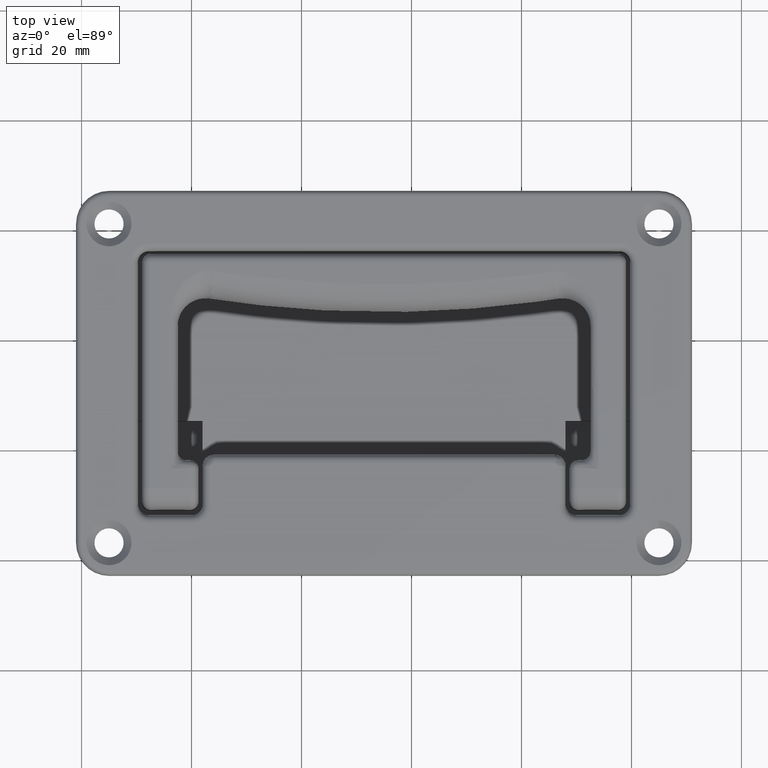
[diagram: clean part render]
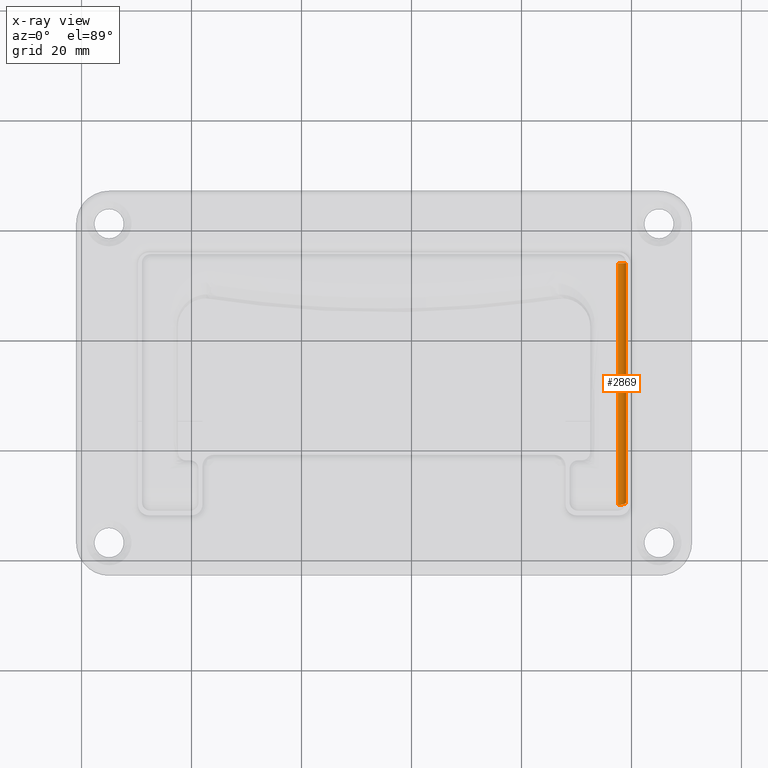
[diagram: x-ray — body ghosted, one internal face saturated and labeled with its STEP entity id]
A machine part, top view, then the same camera in x-ray: the body is ghosted and one INTERNAL B-rep face — a face not visible from any outside direction — is saturated and labeled: STEP entity #2869.
In plain terms, the highlighted cylindrical surface (edge-blend (fillet) strip) has radius 1.5 mm, axis along (0, -1, 0).
Its self-contained STEP definition (entity closure, byte-faithful):
#86=B_SPLINE_CURVE_WITH_KNOTS('',3,(#4379,#4380,#4381,#4382,#4383,#4384,
#4385,#4386,#4387,#4388,#4389,#4390,#4391,#4392,#4393,#4394,#4395,#4396,
#4397,#4398,#4399,#4400,#4401,#4402,#4403,#4404,#4405,#4406,#4407,#4408,
#4409,#4410,#4411,#4412,#4413,#4414,#4415,#4416,#4417,#4418,#4419,#4420,
#4421,#4422,#4423,#4424,#4425,#4426,#4427,#4428,#4429,#4430,#4431,#4432,
#4433,#4434,#4435,#4436,#4437,#4438,#4439,#4440,#4441,#4442,#4443,#4444,
#4445,#4446,#4447,#4448,#4449,#4450,#4451,#4452,#4453,#4454,#4455,#4456,
#4457,#4458,#4459,#4460,#4461,#4462,#4463,#4464,#4465,#4466,#4467,#4468,
#4469,#4470,#4471,#4472),.UNSPECIFIED.,.F.,.F.,(4,3,3,3,3,3,3,3,3,3,3,3,
3,3,3,3,3,3,3,3,3,3,3,3,3,3,3,3,3,3,3,4),(4.2138706751852E-8,0.0340569273156823,
0.0677049350337049,0.0739888339890119,0.101220326883454,0.134854624841893,
0.169207967446688,0.204311187055613,0.241286852609386,0.250000031604034,
0.262616246339423,0.28412862186281,0.316713435639734,0.348427897336422,
0.379678612206954,0.410825957174128,0.442158478836329,0.47432979574268,
0.500000021069361,0.548172933326489,0.595637005866986,0.632855567637265,
0.642605197995984,0.689162632761354,0.735583821136498,0.781970359299388,
0.813350958050753,0.828421387953447,0.875208717919212,0.922274553770172,
0.970034856260735,1.),.UNSPECIFIED.);
#141=LINE('',#4376,#331);
#142=LINE('',#4474,#332);
#331=VECTOR('',#3455,43.500003999996);
#332=VECTOR('',#3458,44.0000039137705);
#605=FACE_OUTER_BOUND('',#804,.T.);
#804=EDGE_LOOP('',(#1928,#1929,#1930,#1931));
#1038=CIRCLE('',#3074,1.5);
#1230=VERTEX_POINT('',#4368);
#1233=VERTEX_POINT('',#4374);
#1234=VERTEX_POINT('',#4378);
#1235=VERTEX_POINT('',#4473);
#1493=EDGE_CURVE('',#1230,#1233,#141,.T.);
#1494=EDGE_CURVE('',#1234,#1233,#86,.T.);
#1495=EDGE_CURVE('',#1235,#1234,#142,.T.);
#1496=EDGE_CURVE('',#1230,#1235,#1038,.T.);
#1928=ORIENTED_EDGE('',*,*,#1494,.F.);
#1929=ORIENTED_EDGE('',*,*,#1495,.F.);
#1930=ORIENTED_EDGE('',*,*,#1496,.F.);
#1931=ORIENTED_EDGE('',*,*,#1493,.T.);
#2778=CYLINDRICAL_SURFACE('',#3073,1.5);
#2869=ADVANCED_FACE('',(#605),#2778,.T.);
#3073=AXIS2_PLACEMENT_3D('',#4377,#3456,#3457);
#3074=AXIS2_PLACEMENT_3D('',#4475,#3459,#3460);
#3455=DIRECTION('',(0.,-1.,0.));
#3456=DIRECTION('center_axis',(0.,-1.,0.));
#3457=DIRECTION('ref_axis',(0.,0.,-1.));
#3458=DIRECTION('',(0.,-1.,0.));
#3459=DIRECTION('center_axis',(0.,1.,0.));
#3460=DIRECTION('ref_axis',(1.,0.,0.));
#4368=CARTESIAN_POINT('',(98.9999999999998,-46.,-63.500000000002));
#4374=CARTESIAN_POINT('',(98.9999999999998,-89.500003999996,-63.500000000002));
#4376=CARTESIAN_POINT('',(98.9999999999998,-46.,-63.500000000002));
#4377=CARTESIAN_POINT('Origin',(97.4999999999998,16.1174052144,-63.500000000002));
#4378=CARTESIAN_POINT('',(97.5000015639394,-90.0000039410778,-64.999792596508));
#4379=CARTESIAN_POINT('Ctrl Pts',(97.5000012336167,-90.0000038755357,-64.9995689572123));
#4380=CARTESIAN_POINT('Ctrl Pts',(97.5256237829227,-89.9999975535866,-64.9995991098802));
#4381=CARTESIAN_POINT('Ctrl Pts',(97.5518965027596,-89.9997019358284,-64.9990032738568));
#4382=CARTESIAN_POINT('Ctrl Pts',(97.5785406870229,-89.9991450692322,-64.9976853322158));
#4383=CARTESIAN_POINT('Ctrl Pts',(97.6048649886456,-89.998594888221,-64.9963832134143));
#4384=CARTESIAN_POINT('Ctrl Pts',(97.631551932817,-89.9977896910596,-64.9943760528449));
#4385=CARTESIAN_POINT('Ctrl Pts',(97.6583203762018,-89.9967565454501,-64.9915930226025));
#4386=CARTESIAN_POINT('Ctrl Pts',(97.66331948922,-89.996563601408,-64.9910732806618));
#4387=CARTESIAN_POINT('Ctrl Pts',(97.6683217803837,-89.9963634595133,-64.9905265062977));
#4388=CARTESIAN_POINT('Ctrl Pts',(97.6733248320259,-89.9961553797952,-64.9899523918835));
#4389=CARTESIAN_POINT('Ctrl Pts',(97.6950057289042,-89.9952536591588,-64.987464447265));
#4390=CARTESIAN_POINT('Ctrl Pts',(97.7167008683884,-89.9941995334586,-64.9844613098506));
#4391=CARTESIAN_POINT('Ctrl Pts',(97.7382686002475,-89.9930176952487,-64.9809777520229));
#4392=CARTESIAN_POINT('Ctrl Pts',(97.7649074452954,-89.9915579773167,-64.9766751226231));
#4393=CARTESIAN_POINT('Ctrl Pts',(97.7913490046622,-89.9898974971707,-64.9716391695447));
#4394=CARTESIAN_POINT('Ctrl Pts',(97.8173331545619,-89.9880632666292,-64.965977143522));
#4395=CARTESIAN_POINT('Ctrl Pts',(97.8438728018262,-89.9861898233278,-64.9601940729185));
#4396=CARTESIAN_POINT('Ctrl Pts',(97.8699351604246,-89.9841351150272,-64.9537583718078));
#4397=CARTESIAN_POINT('Ctrl Pts',(97.8952616618609,-89.9819279607426,-64.9468222435599));
#4398=CARTESIAN_POINT('Ctrl Pts',(97.9211409991956,-89.9796726279077,-64.939734711033));
#4399=CARTESIAN_POINT('Ctrl Pts',(97.946251901171,-89.977258126435,-64.9321249350432));
#4400=CARTESIAN_POINT('Ctrl Pts',(97.9703392707341,-89.9747152515924,-64.924188548618));
#4401=CARTESIAN_POINT('Ctrl Pts',(97.995711488182,-89.9720367368929,-64.9158288262497));
#4402=CARTESIAN_POINT('Ctrl Pts',(98.0199477723027,-89.9692157955315,-64.9071066740058));
#4403=CARTESIAN_POINT('Ctrl Pts',(98.0427760286031,-89.9662883520459,-64.8982857785015));
#4404=CARTESIAN_POINT('Ctrl Pts',(98.0481554228696,-89.9655985108029,-64.8962071670615));
#4405=CARTESIAN_POINT('Ctrl Pts',(98.053456750478,-89.9649027551346,-64.8941232204256));
#4406=CARTESIAN_POINT('Ctrl Pts',(98.0586766750194,-89.9642015544542,-64.8920376561879));
#4407=CARTESIAN_POINT('Ctrl Pts',(98.0662348451151,-89.9631862535679,-64.8890178712984));
#4408=CARTESIAN_POINT('Ctrl Pts',(98.0739488892462,-89.9621140857329,-64.8858642113193));
#4409=CARTESIAN_POINT('Ctrl Pts',(98.0817954646076,-89.9609869719475,-64.8825751390776));
#4410=CARTESIAN_POINT('Ctrl Pts',(98.0951749511879,-89.9590650884413,-64.8769668200478));
#4411=CARTESIAN_POINT('Ctrl Pts',(98.1089390370696,-89.9569827741929,-64.8709645963819));
#4412=CARTESIAN_POINT('Ctrl Pts',(98.1229967207571,-89.9547575480749,-64.8645610962081));
#4413=CARTESIAN_POINT('Ctrl Pts',(98.1442899063746,-89.9513869961529,-64.8548617089667));
#4414=CARTESIAN_POINT('Ctrl Pts',(98.1662482029042,-89.9476855484871,-64.8442422654212));
#4415=CARTESIAN_POINT('Ctrl Pts',(98.1885355873248,-89.9437034749455,-64.832729805481));
#4416=CARTESIAN_POINT('Ctrl Pts',(98.210227667702,-89.9398277640184,-64.821524847481));
#4417=CARTESIAN_POINT('Ctrl Pts',(98.2322309863997,-89.9356862202613,-64.809473979647));
#4418=CARTESIAN_POINT('Ctrl Pts',(98.2542513249025,-89.931325174834,-64.7966523283706));
#4419=CARTESIAN_POINT('Ctrl Pts',(98.2759496695406,-89.9270278990835,-64.7840181625431));
#4420=CARTESIAN_POINT('Ctrl Pts',(98.2976641764437,-89.9225174926971,-64.7706358489622));
#4421=CARTESIAN_POINT('Ctrl Pts',(98.319135099,-89.9178382639348,-64.7566244210124));
#4422=CARTESIAN_POINT('Ctrl Pts',(98.3405350008708,-89.9131745129442,-64.7426593395209));
#4423=CARTESIAN_POINT('Ctrl Pts',(98.3616926592627,-89.9083430528668,-64.7280696275954));
#4424=CARTESIAN_POINT('Ctrl Pts',(98.3823773959852,-89.9033877606936,-64.7130159532548));
#4425=CARTESIAN_POINT('Ctrl Pts',(98.4031851072723,-89.898403008397,-64.6978727820513));
#4426=CARTESIAN_POINT('Ctrl Pts',(98.4235140404995,-89.8932929480228,-64.6822604491227));
#4427=CARTESIAN_POINT('Ctrl Pts',(98.443159921468,-89.888102258849,-64.6663809377144));
#4428=CARTESIAN_POINT('Ctrl Pts',(98.4633317374921,-89.8827726110099,-64.6500763198051));
#4429=CARTESIAN_POINT('Ctrl Pts',(98.4827828921355,-89.8773579612905,-64.6334899344932));
#4430=CARTESIAN_POINT('Ctrl Pts',(98.5013276366712,-89.8719066653489,-64.6168758014515));
#4431=CARTESIAN_POINT('Ctrl Pts',(98.5161249100386,-89.8675569523561,-64.6036190068966));
#4432=CARTESIAN_POINT('Ctrl Pts',(98.5303459476904,-89.8631839067564,-64.590345580329));
#4433=CARTESIAN_POINT('Ctrl Pts',(98.5439162272588,-89.8588120919258,-64.5772009478441));
#4434=CARTESIAN_POINT('Ctrl Pts',(98.5693823023958,-89.850607915704,-64.5525336447998));
#4435=CARTESIAN_POINT('Ctrl Pts',(98.5945776518869,-89.8418684888817,-64.5263642485457));
#4436=CARTESIAN_POINT('Ctrl Pts',(98.6192050246938,-89.8326560985902,-64.4987600925784));
#4437=CARTESIAN_POINT('Ctrl Pts',(98.6434700183307,-89.8235792639008,-64.4715621176198));
#4438=CARTESIAN_POINT('Ctrl Pts',(98.667183212574,-89.814043283327,-64.4429718294625));
#4439=CARTESIAN_POINT('Ctrl Pts',(98.6900860007995,-89.8041077230296,-64.4131041392899));
#4440=CARTESIAN_POINT('Ctrl Pts',(98.7080450336565,-89.7963168352094,-64.3896836359045));
#4441=CARTESIAN_POINT('Ctrl Pts',(98.7255063961405,-89.7882794704205,-64.3654786679106));
#4442=CARTESIAN_POINT('Ctrl Pts',(98.7423578828418,-89.7800263567426,-64.3405634167182));
#4443=CARTESIAN_POINT('Ctrl Pts',(98.7467722330617,-89.7778644030335,-64.3340367139692));
#4444=CARTESIAN_POINT('Ctrl Pts',(98.7511447757533,-89.7756876688355,-64.3274613696433));
#4445=CARTESIAN_POINT('Ctrl Pts',(98.7554736037034,-89.7734963375654,-64.3208387328879));
#4446=CARTESIAN_POINT('Ctrl Pts',(98.776145066875,-89.7630320677517,-64.2892136386671));
#4447=CARTESIAN_POINT('Ctrl Pts',(98.7958153956458,-89.7522400519262,-64.2565081093372));
#4448=CARTESIAN_POINT('Ctrl Pts',(98.8142965357327,-89.7411765121565,-64.2229038585818));
#4449=CARTESIAN_POINT('Ctrl Pts',(98.8327235923282,-89.7301453488991,-64.1893979478206));
#4450=CARTESIAN_POINT('Ctrl Pts',(98.8499683496258,-89.7188442479695,-64.1549993241024));
#4451=CARTESIAN_POINT('Ctrl Pts',(98.8658892854811,-89.7073289407344,-64.1199213082759));
#4452=CARTESIAN_POINT('Ctrl Pts',(98.881798337457,-89.6958222288811,-64.0848694757664));
#4453=CARTESIAN_POINT('Ctrl Pts',(98.8963857723041,-89.6841016314637,-64.0491399381427));
#4454=CARTESIAN_POINT('Ctrl Pts',(98.9095538675165,-89.6722227543297,-64.0129678677814));
#4455=CARTESIAN_POINT('Ctrl Pts',(98.9184621139291,-89.6641866668845,-63.9884973797698));
#4456=CARTESIAN_POINT('Ctrl Pts',(98.926721914569,-89.6560753953065,-63.9638241265655));
#4457=CARTESIAN_POINT('Ctrl Pts',(98.9343127865984,-89.6479126133091,-63.9390262055205));
#4458=CARTESIAN_POINT('Ctrl Pts',(98.9379582780604,-89.6439924639557,-63.927117085054));
#4459=CARTESIAN_POINT('Ctrl Pts',(98.9414495868081,-89.64006042177,-63.9151792555206));
#4460=CARTESIAN_POINT('Ctrl Pts',(98.9447856203934,-89.6361162382236,-63.9032209048581));
#4461=CARTESIAN_POINT('Ctrl Pts',(98.9551425979409,-89.6238712114911,-63.866095268635));
#4462=CARTESIAN_POINT('Ctrl Pts',(98.963996960374,-89.6115217916667,-63.8287746293584));
#4463=CARTESIAN_POINT('Ctrl Pts',(98.9713561366658,-89.5991250453232,-63.7915265178244));
#4464=CARTESIAN_POINT('Ctrl Pts',(98.9787591191314,-89.5866545062067,-63.7540566834804));
#4465=CARTESIAN_POINT('Ctrl Pts',(98.9846493948072,-89.5741360763253,-63.7166612298361));
#4466=CARTESIAN_POINT('Ctrl Pts',(98.9891010409701,-89.5616278419969,-63.6796095893531));
#4467=CARTESIAN_POINT('Ctrl Pts',(98.9936183721399,-89.5489350459517,-63.6420112438601));
#4468=CARTESIAN_POINT('Ctrl Pts',(98.996654953139,-89.5362527409659,-63.6047677435053));
#4469=CARTESIAN_POINT('Ctrl Pts',(98.9983490520936,-89.5236416673088,-63.5681437637142));
#4470=CARTESIAN_POINT('Ctrl Pts',(98.9994119414816,-89.5157293925715,-63.545165625773));
#4471=CARTESIAN_POINT('Ctrl Pts',(98.9999475649913,-89.507845158554,-63.5224309490873));
#4472=CARTESIAN_POINT('Ctrl Pts',(98.9999999999963,-89.500003999996,-63.500000000002));
#4473=CARTESIAN_POINT('',(97.4999999999998,-46.,-65.000000000002));
#4474=CARTESIAN_POINT('',(97.4999999999998,-90.000003999996,-65.000000000002));
#4475=CARTESIAN_POINT('Origin',(97.4999999999998,-46.,-63.500000000002));